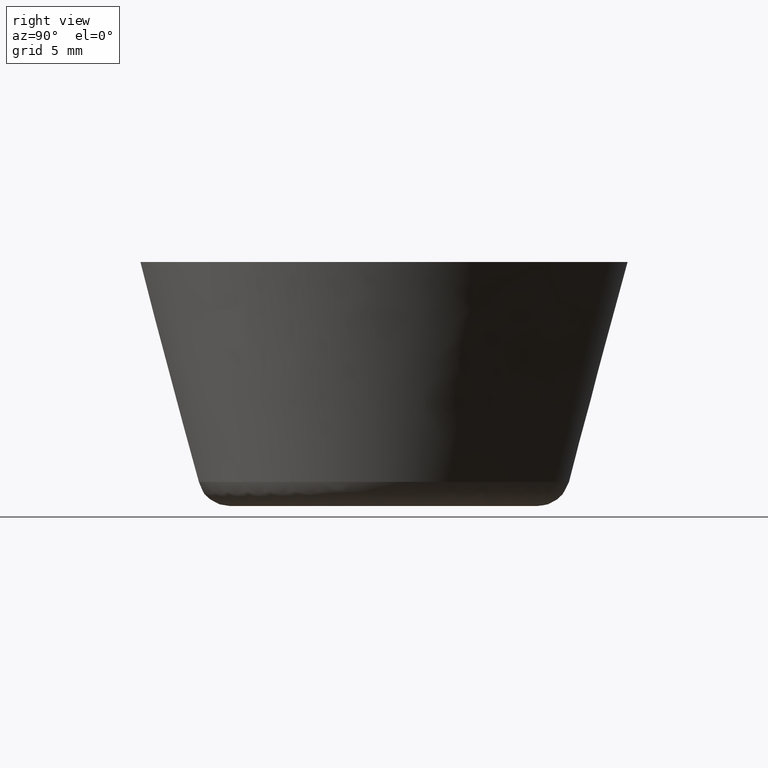
[diagram: clean part render]
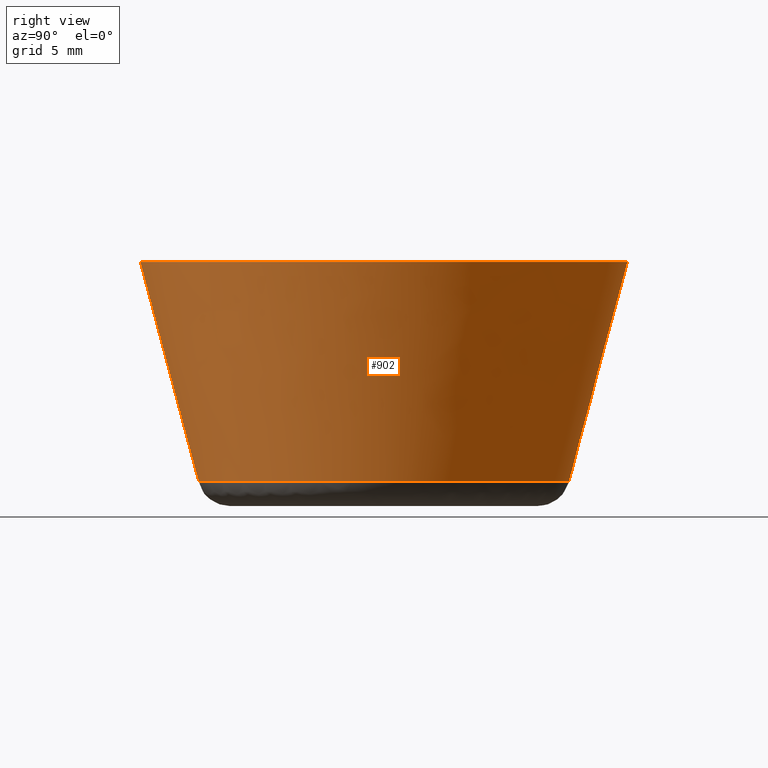
[diagram: same view with one face highlighted and labeled with its STEP entity id]
A machine part, right view. The second image highlights one B-rep face of the part: STEP entity #902.
In plain terms, the highlighted face is a freeform B-spline surface patch.
Its self-contained STEP definition (entity closure, byte-faithful):
#701=CARTESIAN_POINT('',(0.894102223881726,-11.360782142834809,1.484667856032542));
#702=VERTEX_POINT('',#701);
#703=CARTESIAN_POINT('',(-10.596654389991979,-4.192578432100836,1.484669252332252));
#704=VERTEX_POINT('',#703);
#720=CARTESIAN_POINT('',(1.176877715746769,-14.953759134299260,14.999994175567020));
#721=VERTEX_POINT('',#720);
#722=CARTESIAN_POINT('',(0.894102223881726,-11.360782142834809,1.484667856032542));
#723=CARTESIAN_POINT('',(1.176877715746769,-14.953759134299260,14.999994175567020));
#724=QUASI_UNIFORM_CURVE('',1,(#722,#723),.UNSPECIFIED.,.F.,.U.);
#725=EDGE_CURVE('',#702,#721,#724,.T.);
#727=CARTESIAN_POINT('',(-13.947966666066890,-5.518530141361596,14.999993629857430));
#728=VERTEX_POINT('',#727);
#744=CARTESIAN_POINT('',(-10.596654389991979,-4.192578432100836,1.484669252332252));
#745=CARTESIAN_POINT('',(-13.947966666066890,-5.518530141361596,14.999993629857430));
#746=QUASI_UNIFORM_CURVE('',1,(#744,#745),.UNSPECIFIED.,.F.,.U.);
#747=EDGE_CURVE('',#704,#728,#746,.T.);
#752=CARTESIAN_POINT('',(0.887043693799585,-11.270958783350110,1.146791874999893));
#753=CARTESIAN_POINT('',(12.158002477149690,-10.383915089550520,1.146791874999893));
#754=CARTESIAN_POINT('',(11.270958783350110,0.887043693799585,1.146791874999893));
#755=CARTESIAN_POINT('',(10.383915089550520,12.158002477149690,1.146791874999893));
#756=CARTESIAN_POINT('',(-0.887043693799585,11.270958783350110,1.146791874999893));
#757=CARTESIAN_POINT('',(-12.158002477149690,10.383915089550520,1.146791874999893));
#758=CARTESIAN_POINT('',(-11.270958783350110,-0.887043693799585,1.146791874999893));
#759=CARTESIAN_POINT('',(-11.137706099641843,-2.580179574641436,1.146791874999892));
#760=CARTESIAN_POINT('',(-10.512871222880843,-4.159434704597526,1.146791874999892));
#761=CARTESIAN_POINT('',(1.184132504470636,-15.045830036563091,15.346330203125000));
#762=CARTESIAN_POINT('',(16.229962541033728,-13.861697532092451,15.346330203125007));
#763=CARTESIAN_POINT('',(15.045830036563091,1.184132504470636,15.346330203125000));
#764=CARTESIAN_POINT('',(13.861697532092451,16.229962541033728,15.346330203125007));
#765=CARTESIAN_POINT('',(-1.184132504470636,15.045830036563091,15.346330203125000));
#766=CARTESIAN_POINT('',(-16.229962541033728,13.861697532092451,15.346330203125007));
#767=CARTESIAN_POINT('',(-15.045830036563091,-1.184132504470636,15.346330203125000));
#768=CARTESIAN_POINT('',(-14.867948343485468,-3.444333715532213,15.346330203125007));
#769=CARTESIAN_POINT('',(-14.033843673477211,-5.552513217065894,15.346330203125000));
#777=(BOUNDED_SURFACE()B_SPLINE_SURFACE(2,1,((#752,#761),(#753,#762),(#754,#763),(#755,#764),(#756,#765),(#757,#766),(#758,#767),(#759,#768),(#760,#769)),.UNSPECIFIED.,.F.,.F.,.U.)B_SPLINE_SURFACE_WITH_KNOTS((3,2,2,2,3),(2,2),(0.0,25.005832068211390,50.011664136422780,75.017496204634170,80.018662618276451),(0.0,14.695740997705890),.UNSPECIFIED.)GEOMETRIC_REPRESENTATION_ITEM()RATIONAL_B_SPLINE_SURFACE(((1.0,1.0),(0.707106781186548,0.707106781186548),(1.0,1.0),(0.707106781186548,0.707106781186548),(1.0,1.0),(0.707106781186548,0.707106781186548),(1.0,1.0),(0.941421356237310,0.941421356237310),(0.906274169979695,0.906274169979695)))REPRESENTATION_ITEM('')SURFACE());
#778=CARTESIAN_POINT('',(-11.395913000000000,0.0,1.484674999999896));
#779=VERTEX_POINT('',#778);
#780=CARTESIAN_POINT('',(-10.596654389991977,-4.192578432100836,1.484669252332251));
#781=CARTESIAN_POINT('',(-11.395912287392441,-2.172472878666465,1.484672126166073));
#782=CARTESIAN_POINT('',(-11.395913000000000,0.0,1.484674999999896));
#790=(BOUNDED_CURVE()B_SPLINE_CURVE(2,(#780,#781,#782),.UNSPECIFIED.,.F.,.U.)B_SPLINE_CURVE_WITH_KNOTS((3,3),(0.937532616963233,1.0),.UNSPECIFIED.)CURVE()GEOMETRIC_REPRESENTATION_ITEM()RATIONAL_B_SPLINE_CURVE((0.890203266065528,0.926814908446034,1.0))REPRESENTATION_ITEM(''));
#791=EDGE_CURVE('',#704,#779,#790,.T.);
#792=ORIENTED_EDGE('',*,*,#791,.F.);
#793=ORIENTED_EDGE('',*,*,#747,.T.);
#794=CARTESIAN_POINT('',(-15.0,0.0,15.0));
#795=VERTEX_POINT('',#794);
#796=CARTESIAN_POINT('',(-13.947966666066892,-5.518530141361596,14.999993629857435));
#797=CARTESIAN_POINT('',(-14.999999210216856,-2.859542740504718,14.999996814928712));
#798=CARTESIAN_POINT('',(-15.0,0.0,15.0));
#806=(BOUNDED_CURVE()B_SPLINE_CURVE(2,(#796,#797,#798),.UNSPECIFIED.,.F.,.U.)B_SPLINE_CURVE_WITH_KNOTS((3,3),(0.937532605517383,1.0),.UNSPECIFIED.)CURVE()GEOMETRIC_REPRESENTATION_ITEM()RATIONAL_B_SPLINE_CURVE((0.890203252648883,0.926814895036386,1.0))REPRESENTATION_ITEM(''));
#807=EDGE_CURVE('',#728,#795,#806,.T.);
#808=ORIENTED_EDGE('',*,*,#807,.T.);
#809=CARTESIAN_POINT('',(15.0,0.0,15.0));
#810=VERTEX_POINT('',#809);
#811=CARTESIAN_POINT('',(-15.0,0.0,15.0));
#812=CARTESIAN_POINT('',(-14.999999999999996,14.999999999999996,14.999999999999996));
#813=CARTESIAN_POINT('',(0.0,15.0,15.0));
#814=CARTESIAN_POINT('',(14.999999999999996,14.999999999999996,14.999999999999996));
#815=CARTESIAN_POINT('',(15.0,0.0,15.0));
#823=(BOUNDED_CURVE()B_SPLINE_CURVE(2,(#811,#812,#813,#814,#815),.UNSPECIFIED.,.F.,.U.)B_SPLINE_CURVE_WITH_KNOTS((3,2,3),(0.0,0.250000000000000,0.500000000000000),.UNSPECIFIED.)CURVE()GEOMETRIC_REPRESENTATION_ITEM()RATIONAL_B_SPLINE_CURVE((1.0,0.707106781186547,1.0,0.707106781186547,1.0))REPRESENTATION_ITEM(''));
#824=EDGE_CURVE('',#795,#810,#823,.T.);
#825=ORIENTED_EDGE('',*,*,#824,.T.);
#826=CARTESIAN_POINT('',(15.0,0.0,15.0));
#827=CARTESIAN_POINT('',(14.999999939069706,-13.865864598103723,14.999997087783514));
#828=CARTESIAN_POINT('',(1.176877715746769,-14.953759134299261,14.999994175567021));
#836=(BOUNDED_CURVE()B_SPLINE_CURVE(2,(#826,#827,#828),.UNSPECIFIED.,.F.,.U.)B_SPLINE_CURVE_WITH_KNOTS((3,3),(0.500000000000000,0.736331399200691),.UNSPECIFIED.)CURVE()GEOMETRIC_REPRESENTATION_ITEM()RATIONAL_B_SPLINE_CURVE((1.0,0.723120543125690,0.969723561875646))REPRESENTATION_ITEM(''));
#837=EDGE_CURVE('',#810,#721,#836,.T.);
#838=ORIENTED_EDGE('',*,*,#837,.T.);
#839=ORIENTED_EDGE('',*,*,#725,.F.);
#840=CARTESIAN_POINT('',(11.395913000000000,0.0,1.484674999999896));
#841=VERTEX_POINT('',#840);
#842=CARTESIAN_POINT('',(11.395913000000000,0.0,1.484674999999896));
#843=CARTESIAN_POINT('',(11.395912925266126,-10.534282582340243,1.484671428016219));
#844=CARTESIAN_POINT('',(0.894102223881726,-11.360782142834802,1.484667856032541));
#852=(BOUNDED_CURVE()B_SPLINE_CURVE(2,(#842,#843,#844),.UNSPECIFIED.,.F.,.U.)B_SPLINE_CURVE_WITH_KNOTS((3,3),(0.500000000000000,0.736331461417026),.UNSPECIFIED.)CURVE()GEOMETRIC_REPRESENTATION_ITEM()RATIONAL_B_SPLINE_CURVE((1.0,0.723120470234720,0.969723691716541))REPRESENTATION_ITEM(''));
#853=EDGE_CURVE('',#841,#702,#852,.T.);
#854=ORIENTED_EDGE('',*,*,#853,.F.);
#855=CARTESIAN_POINT('',(1.398603272956064,11.309763107930380,1.484675005030863));
#856=VERTEX_POINT('',#855);
#857=CARTESIAN_POINT('',(1.398603272956064,11.309763107930378,1.484675005030862));
#858=CARTESIAN_POINT('',(11.395913000000002,10.073462245029408,1.484674999999897));
#859=CARTESIAN_POINT('',(11.395913000000000,0.0,1.484674999999896));
#867=(BOUNDED_CURVE()B_SPLINE_CURVE(2,(#857,#858,#859),.UNSPECIFIED.,.F.,.U.)B_SPLINE_CURVE_WITH_KNOTS((3,3),(0.271236031903497,0.500000000000000),.UNSPECIFIED.)CURVE()GEOMETRIC_REPRESENTATION_ITEM()RATIONAL_B_SPLINE_CURVE((0.954467626949581,0.731986340142709,1.0))REPRESENTATION_ITEM(''));
#868=EDGE_CURVE('',#856,#841,#867,.T.);
#869=ORIENTED_EDGE('',*,*,#868,.F.);
#870=CARTESIAN_POINT('',(-11.072630677959060,2.695121990196576,1.484675005013568));
#871=VERTEX_POINT('',#870);
#872=CARTESIAN_POINT('',(-11.072630677959058,2.695121990196575,1.484675005013569));
#873=CARTESIAN_POINT('',(-8.954823839718012,11.395913000000000,1.484674999999897));
#874=CARTESIAN_POINT('',(0.0,11.395913000000000,1.484674999999896));
#875=CARTESIAN_POINT('',(0.701954927818329,11.395913000000004,1.484674999999896));
#876=CARTESIAN_POINT('',(1.398603272956064,11.309763107930380,1.484675005030863));
#884=(BOUNDED_CURVE()B_SPLINE_CURVE(2,(#872,#873,#874,#875,#876),.UNSPECIFIED.,.F.,.U.)B_SPLINE_CURVE_WITH_KNOTS((3,2,3),(0.040401677692741,0.250000000000000,0.271236031903497),.UNSPECIFIED.)CURVE()GEOMETRIC_REPRESENTATION_ITEM()RATIONAL_B_SPLINE_CURVE((0.920631806224459,0.754440290886110,1.0,0.975120441043839,0.954467626949581))REPRESENTATION_ITEM(''));
#885=EDGE_CURVE('',#871,#856,#884,.T.);
#886=ORIENTED_EDGE('',*,*,#885,.F.);
#887=CARTESIAN_POINT('',(-11.395913000000000,0.0,1.484674999999896));
#888=CARTESIAN_POINT('',(-11.395912999999998,1.366949998661673,1.484674999999896));
#889=CARTESIAN_POINT('',(-11.072630677959058,2.695121990196575,1.484675005013569));
#897=(BOUNDED_CURVE()B_SPLINE_CURVE(2,(#887,#888,#889),.UNSPECIFIED.,.F.,.U.)B_SPLINE_CURVE_WITH_KNOTS((3,3),(0.0,0.040401677692741),.UNSPECIFIED.)CURVE()GEOMETRIC_REPRESENTATION_ITEM()RATIONAL_B_SPLINE_CURVE((1.0,0.952666490300438,0.920631806224459))REPRESENTATION_ITEM(''));
#898=EDGE_CURVE('',#779,#871,#897,.T.);
#899=ORIENTED_EDGE('',*,*,#898,.F.);
#900=EDGE_LOOP('',(#792,#793,#808,#825,#838,#839,#854,#869,#886,#899));
#901=FACE_OUTER_BOUND('',#900,.T.);
#902=ADVANCED_FACE('',(#901),#777,.T.);